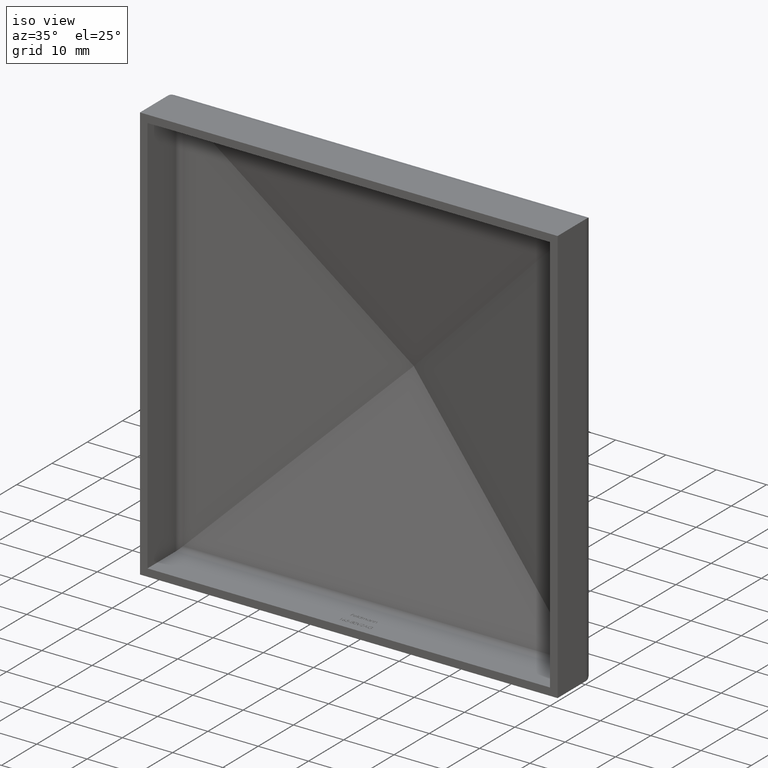
[diagram: clean part render]
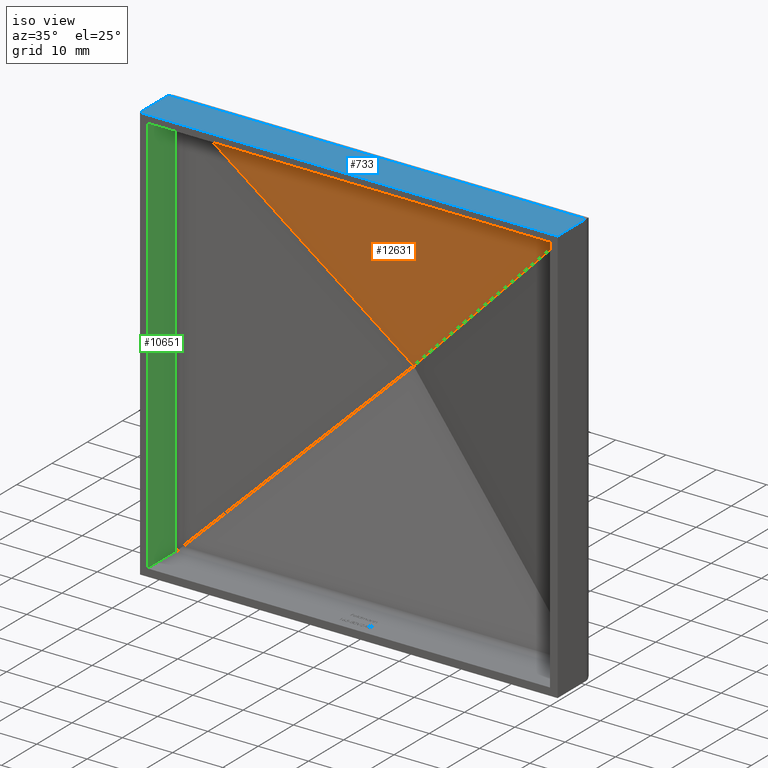
[diagram: same view with three faces highlighted in distinct colors, each labeled with its STEP entity id]
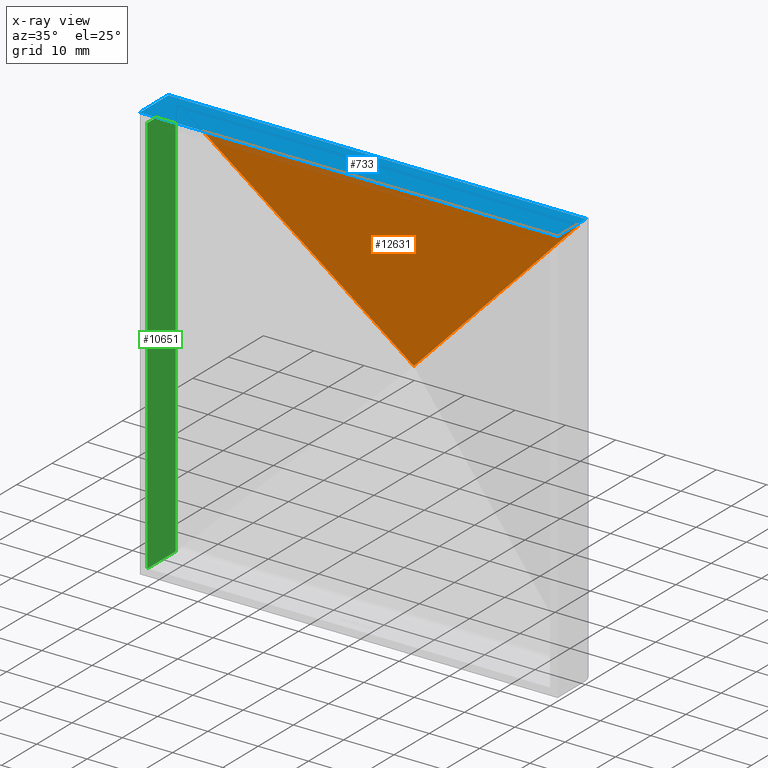
[diagram: x-ray of the same camera — body ghosted, the three highlighted faces saturated]
A machine part, iso view with three faces highlighted in distinct colors.
The next image is the same camera in x-ray (body ghosted, the three faces saturated) — at least one of them is partly hidden behind the body in this view.
Their STEP definitions:

[orange] entity #12631 — the highlighted planar face has unit normal (0, 0.9722, 0.2343).
#591 = VECTOR ( 'NONE', #8541, 1000.000000000000000 ) ;
#1050 = ORIENTED_EDGE ( 'NONE', *, *, #12654, .F. ) ;
#1051 = CARTESIAN_POINT ( 'NONE',  ( -0.006662687034884873200, 18.45830039286639500, 0.006662687034877934300 ) ) ;
#1161 = AXIS2_PLACEMENT_3D ( 'NONE', #9456, #3131, #4113 ) ;
#1583 = LINE ( 'NONE', #1051, #5082 ) ;
#2176 = EDGE_CURVE ( 'NONE', #3536, #10331, #13750, .T. ) ;
#3131 = DIRECTION ( 'NONE',  ( 1.040599882247293800E-016, 0.9721589774753730500, 0.2343222620965347600 ) ) ;
#3536 = VERTEX_POINT ( 'NONE', #7380 ) ;
#4113 = DIRECTION ( 'NONE',  ( 0.0000000000000000000, -0.2343222620965347600, 0.9721589774753730500 ) ) ;
#4236 = CARTESIAN_POINT ( 'NONE',  ( -41.50000000000003600, 9.003145277957125700, 39.23432226209657600 ) ) ;
#4395 = LINE ( 'NONE', #4236, #591 ) ;
#4940 = ORIENTED_EDGE ( 'NONE', *, *, #2176, .F. ) ;
#5082 = VECTOR ( 'NONE', #9493, 1000.000000000000100 ) ;
#7064 = ORIENTED_EDGE ( 'NONE', *, *, #9556, .F. ) ;
#7380 = CARTESIAN_POINT ( 'NONE',  ( 39.23432226209655500, 9.003145277957120400, 39.23432226209654100 ) ) ;
#7655 = DIRECTION ( 'NONE',  ( -0.6970550805537237800, 0.1680131820676093700, -0.6970550805537234500 ) ) ;
#8541 = DIRECTION ( 'NONE',  ( 1.000000000000000000, -1.011628517486522800E-016, -2.438357183455735900E-017 ) ) ;
#8571 = EDGE_LOOP ( 'NONE', ( #4940, #1050, #7064 ) ) ;
#8676 = CARTESIAN_POINT ( 'NONE',  ( -20.33291585908079900, 23.36080725176819300, -20.33291585908077800 ) ) ;
#9123 = CARTESIAN_POINT ( 'NONE',  ( -39.23432226209651200, 9.003145277957120400, 39.23432226209658300 ) ) ;
#9456 = CARTESIAN_POINT ( 'NONE',  ( -41.50000000000003600, 18.53897743153448400, -0.3280511669351293700 ) ) ;
#9493 = DIRECTION ( 'NONE',  ( -0.6970550805537228900, -0.1680131820676094300, 0.6970550805537243400 ) ) ;
#9556 = EDGE_CURVE ( 'NONE', #10331, #13747, #1583, .T. ) ;
#9772 = FACE_OUTER_BOUND ( 'NONE', #8571, .T. ) ;
#10331 = VERTEX_POINT ( 'NONE', #12032 ) ;
#10553 = PLANE ( 'NONE',  #1161 ) ;
#11100 = VECTOR ( 'NONE', #7655, 1000.000000000000100 ) ;
#12032 = CARTESIAN_POINT ( 'NONE',  ( 1.227350740571481200E-015, 18.45990631940087200, 1.264366080366494100E-014 ) ) ;
#12631 = ADVANCED_FACE ( 'NONE', ( #9772 ), #10553, .F. ) ;
#12654 = EDGE_CURVE ( 'NONE', #13747, #3536, #4395, .T. ) ;
#13747 = VERTEX_POINT ( 'NONE', #9123 ) ;
#13750 = LINE ( 'NONE', #8676, #11100 ) ;

[blue] entity #733 — the highlighted planar face has unit normal (0, 0, -1).
#94 = LINE ( 'NONE', #12199, #3047 ) ;
#365 = CARTESIAN_POINT ( 'NONE',  ( 41.50000000000000000, 0.0000000000000000000, 41.50000000000000700 ) ) ;
#595 = EDGE_CURVE ( 'NONE', #2424, #11215, #802, .T. ) ;
#733 = ADVANCED_FACE ( 'NONE', ( #11290 ), #9175, .F. ) ;
#802 = LINE ( 'NONE', #10770, #3446 ) ;
#2424 = VERTEX_POINT ( 'NONE', #13790 ) ;
#2601 = CARTESIAN_POINT ( 'NONE',  ( -41.50000000000000000, 0.0000000000000000000, 41.50000000000000700 ) ) ;
#3047 = VECTOR ( 'NONE', #4842, 1000.000000000000000 ) ;
#3248 = CARTESIAN_POINT ( 'NONE',  ( -41.50000000000000000, 25.00000000000000000, 41.50000000000000700 ) ) ;
#3427 = AXIS2_PLACEMENT_3D ( 'NONE', #4920, #7795, #8861 ) ;
#3446 = VECTOR ( 'NONE', #8705, 1000.000000000000000 ) ;
#4382 = LINE ( 'NONE', #4511, #11746 ) ;
#4511 = CARTESIAN_POINT ( 'NONE',  ( -41.50000000000000000, 0.0000000000000000000, 41.50000000000000700 ) ) ;
#4702 = VERTEX_POINT ( 'NONE', #365 ) ;
#4842 = DIRECTION ( 'NONE',  ( -0.0000000000000000000, -1.000000000000000000, -0.0000000000000000000 ) ) ;
#4920 = CARTESIAN_POINT ( 'NONE',  ( -41.50000000000000000, 25.00000000000000000, 41.50000000000000700 ) ) ;
#6313 = VERTEX_POINT ( 'NONE', #2601 ) ;
#6657 = DIRECTION ( 'NONE',  ( -0.0000000000000000000, -1.000000000000000000, -0.0000000000000000000 ) ) ;
#6762 = ORIENTED_EDGE ( 'NONE', *, *, #11211, .T. ) ;
#6953 = VECTOR ( 'NONE', #6657, 1000.000000000000000 ) ;
#7139 = EDGE_LOOP ( 'NONE', ( #12712, #6762, #13064, #11836 ) ) ;
#7755 = DIRECTION ( 'NONE',  ( 1.000000000000000000, 0.0000000000000000000, 0.0000000000000000000 ) ) ;
#7795 = DIRECTION ( 'NONE',  ( 0.0000000000000000000, 0.0000000000000000000, -1.000000000000000000 ) ) ;
#8705 = DIRECTION ( 'NONE',  ( 1.000000000000000000, -0.0000000000000000000, -4.440892098500625700E-016 ) ) ;
#8861 = DIRECTION ( 'NONE',  ( -1.000000000000000000, 0.0000000000000000000, -0.0000000000000000000 ) ) ;
#9175 = PLANE ( 'NONE',  #3427 ) ;
#9821 = LINE ( 'NONE', #3248, #6953 ) ;
#10770 = CARTESIAN_POINT ( 'NONE',  ( -41.50000000000002800, 8.030986300481739400, 41.50000000000001400 ) ) ;
#10899 = CARTESIAN_POINT ( 'NONE',  ( 41.50000000000001400, 8.030986300481739400, 41.49999999999997200 ) ) ;
#11211 = EDGE_CURVE ( 'NONE', #2424, #6313, #9821, .T. ) ;
#11215 = VERTEX_POINT ( 'NONE', #10899 ) ;
#11290 = FACE_OUTER_BOUND ( 'NONE', #7139, .T. ) ;
#11746 = VECTOR ( 'NONE', #7755, 1000.000000000000000 ) ;
#11836 = ORIENTED_EDGE ( 'NONE', *, *, #12843, .F. ) ;
#12199 = CARTESIAN_POINT ( 'NONE',  ( 41.50000000000000000, 25.00000000000000000, 41.50000000000000700 ) ) ;
#12712 = ORIENTED_EDGE ( 'NONE', *, *, #595, .F. ) ;
#12735 = EDGE_CURVE ( 'NONE', #6313, #4702, #4382, .T. ) ;
#12843 = EDGE_CURVE ( 'NONE', #11215, #4702, #94, .T. ) ;
#13064 = ORIENTED_EDGE ( 'NONE', *, *, #12735, .T. ) ;
#13790 = CARTESIAN_POINT ( 'NONE',  ( -41.50000000000002800, 8.030986300481739400, 41.50000000000001400 ) ) ;

[green] entity #10651 — the highlighted planar face has unit normal (1, 0, -0).
#588 = CARTESIAN_POINT ( 'NONE',  ( -40.00000000000000000, 0.0000000000000000000, 40.00000000000000700 ) ) ;
#1569 = CARTESIAN_POINT ( 'NONE',  ( -40.00000000000000700, 25.00000000000000000, -39.99999999999999300 ) ) ;
#1623 = PLANE ( 'NONE',  #9830 ) ;
#1655 = CARTESIAN_POINT ( 'NONE',  ( -40.00000000000000700, 8.030986300481741200, -39.99999999999998600 ) ) ;
#1858 = CARTESIAN_POINT ( 'NONE',  ( -40.00000000000000000, 25.00000000000000000, 40.00000000000000700 ) ) ;
#1967 = LINE ( 'NONE', #1569, #12608 ) ;
#2000 = DIRECTION ( 'NONE',  ( -0.0000000000000000000, -0.0000000000000000000, 1.000000000000000000 ) ) ;
#2456 = LINE ( 'NONE', #1858, #7441 ) ;
#2541 = ORIENTED_EDGE ( 'NONE', *, *, #8141, .T. ) ;
#2725 = ORIENTED_EDGE ( 'NONE', *, *, #5706, .F. ) ;
#2936 = EDGE_CURVE ( 'NONE', #8523, #9254, #9424, .T. ) ;
#3827 = DIRECTION ( 'NONE',  ( 8.360113137237623700E-017, -0.0000000000000000000, 1.000000000000000000 ) ) ;
#4175 = FACE_OUTER_BOUND ( 'NONE', #13733, .T. ) ;
#4932 = ORIENTED_EDGE ( 'NONE', *, *, #2936, .F. ) ;
#5019 = DIRECTION ( 'NONE',  ( 0.0000000000000000000, -1.000000000000000000, 0.0000000000000000000 ) ) ;
#5417 = VECTOR ( 'NONE', #3827, 1000.000000000000000 ) ;
#5613 = LINE ( 'NONE', #8422, #11934 ) ;
#5706 = EDGE_CURVE ( 'NONE', #7198, #8523, #1967, .T. ) ;
#5765 = DIRECTION ( 'NONE',  ( -8.360113137237623700E-017, 0.0000000000000000000, -1.000000000000000000 ) ) ;
#6432 = EDGE_CURVE ( 'NONE', #8690, #9254, #2456, .T. ) ;
#6785 = DIRECTION ( 'NONE',  ( 0.0000000000000000000, -1.000000000000000000, 0.0000000000000000000 ) ) ;
#7198 = VERTEX_POINT ( 'NONE', #1655 ) ;
#7441 = VECTOR ( 'NONE', #5019, 1000.000000000000000 ) ;
#8129 = ORIENTED_EDGE ( 'NONE', *, *, #6432, .T. ) ;
#8141 = EDGE_CURVE ( 'NONE', #7198, #8690, #5613, .T. ) ;
#8422 = CARTESIAN_POINT ( 'NONE',  ( -40.00000000000000000, 8.030986300481739400, -41.49999999999999300 ) ) ;
#8523 = VERTEX_POINT ( 'NONE', #13457 ) ;
#8690 = VERTEX_POINT ( 'NONE', #11967 ) ;
#8840 = CARTESIAN_POINT ( 'NONE',  ( -40.00000000000000700, 0.0000000000000000000, -41.49999999999999300 ) ) ;
#9254 = VERTEX_POINT ( 'NONE', #588 ) ;
#9424 = LINE ( 'NONE', #8840, #5417 ) ;
#9830 = AXIS2_PLACEMENT_3D ( 'NONE', #10158, #12130, #5765 ) ;
#10158 = CARTESIAN_POINT ( 'NONE',  ( -40.00000000000000700, 25.00000000000000000, -41.49999999999999300 ) ) ;
#10651 = ADVANCED_FACE ( 'NONE', ( #4175 ), #1623, .T. ) ;
#11934 = VECTOR ( 'NONE', #2000, 1000.000000000000000 ) ;
#11967 = CARTESIAN_POINT ( 'NONE',  ( -40.00000000000000000, 8.030986300481737700, 40.00000000000002100 ) ) ;
#12130 = DIRECTION ( 'NONE',  ( 1.000000000000000000, 0.0000000000000000000, -8.360113137237623700E-017 ) ) ;
#12608 = VECTOR ( 'NONE', #6785, 1000.000000000000000 ) ;
#13457 = CARTESIAN_POINT ( 'NONE',  ( -40.00000000000000700, 0.0000000000000000000, -39.99999999999999300 ) ) ;
#13733 = EDGE_LOOP ( 'NONE', ( #8129, #4932, #2725, #2541 ) ) ;